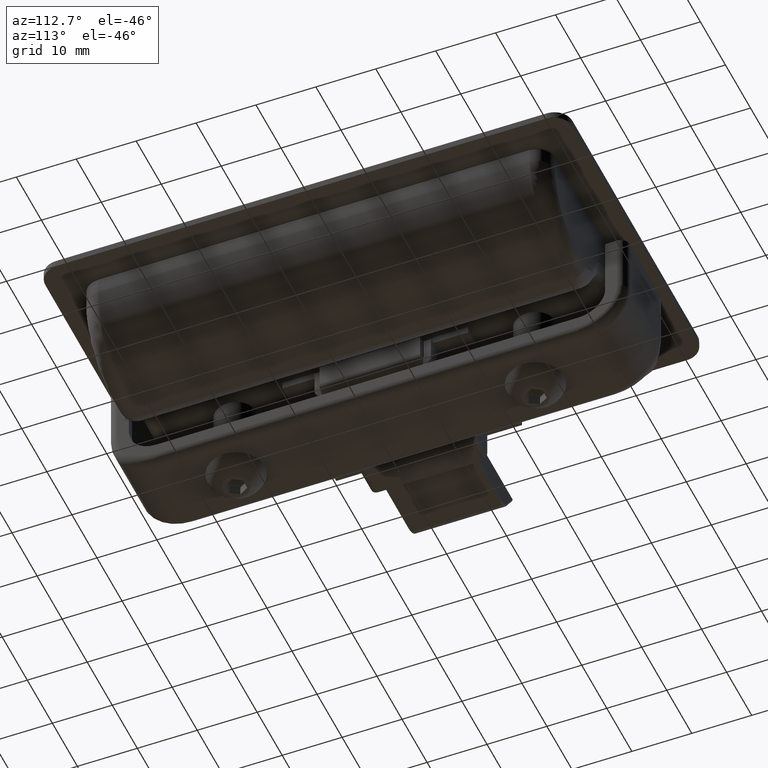
[diagram: clean part render]
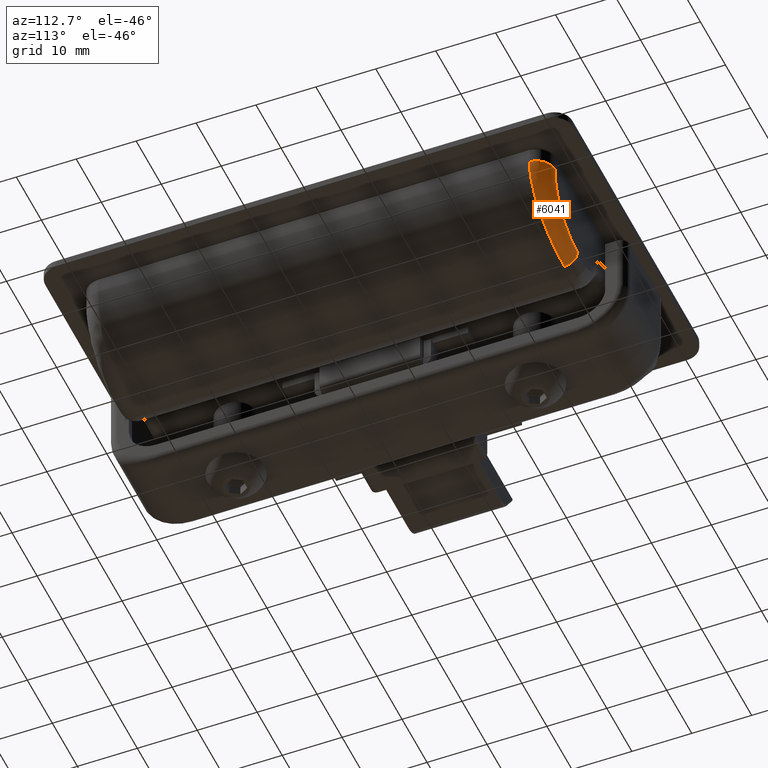
[diagram: same view with one face highlighted and labeled with its STEP entity id]
A machine part, auxiliary view. The second image highlights one B-rep face of the part: STEP entity #6041.
In plain terms, the highlighted face is a freeform B-spline surface patch.
Its self-contained STEP definition (entity closure, byte-faithful):
#155=(
BOUNDED_SURFACE()
B_SPLINE_SURFACE(2,3,((#9916,#9917,#9918,#9919,#9920,#9921,#9922,#9923,
#9924,#9925),(#9926,#9927,#9928,#9929,#9930,#9931,#9932,#9933,#9934,#9935),
(#9936,#9937,#9938,#9939,#9940,#9941,#9942,#9943,#9944,#9945)),
 .UNSPECIFIED.,.F.,.F.,.F.)
B_SPLINE_SURFACE_WITH_KNOTS((3,3),(4,2,2,2,4),(0.,1.),(3.14159265358979,
3.53429173528852,3.92699081698724,4.31968989868597,4.71238898038469),
 .UNSPECIFIED.)
GEOMETRIC_REPRESENTATION_ITEM()
RATIONAL_B_SPLINE_SURFACE(((1.,1.,1.,1.,1.,1.,1.,1.,1.,1.),(0.707106781186549,
0.707106781186549,0.707106781186546,0.707106781186546,0.707106781186547,
0.707106781186547,0.707106781186547,0.707106781186547,0.707106781186548,
0.707106781186548),(1.,1.,1.,1.,1.,1.,1.,1.,1.,1.)))
REPRESENTATION_ITEM('')
SURFACE()
);
#182=B_SPLINE_CURVE_WITH_KNOTS('',3,(#9555,#9556,#9557,#9558,#9559,#9560,
#9561,#9562,#9563,#9564,#9565,#9566,#9567,#9568,#9569,#9570,#9571,#9572,
#9573,#9574,#9575,#9576,#9577,#9578,#9579,#9580,#9581,#9582,#9583,#9584,
#9585,#9586,#9587,#9588,#9589,#9590,#9591,#9592,#9593,#9594,#9595,#9596,
#9597,#9598,#9599,#9600,#9601,#9602,#9603,#9604,#9605,#9606,#9607,#9608,
#9609,#9610,#9611,#9612,#9613,#9614,#9615,#9616,#9617,#9618,#9619,#9620,
#9621,#9622,#9623,#9624,#9625,#9626,#9627,#9628,#9629,#9630,#9631,#9632,
#9633,#9634,#9635,#9636,#9637,#9638,#9639,#9640,#9641,#9642,#9643,#9644,
#9645,#9646,#9647,#9648,#9649,#9650,#9651,#9652,#9653,#9654,#9655,#9656,
#9657,#9658,#9659,#9660,#9661,#9662,#9663,#9664,#9665),.UNSPECIFIED.,.F.,
 .F.,(4,2,2,2,2,2,2,2,2,2,2,2,2,2,2,2,2,2,2,2,2,2,2,2,2,2,2,2,2,2,2,2,2,
2,2,2,2,2,2,2,2,2,2,2,2,1,2,2,2,2,2,2,2,2,2,4),(0.,0.0349272003718459,0.0693509354147323,
0.10305007667034,0.124999999999937,0.157637924842805,0.188950866506552,
0.219396113454078,0.249023437499873,0.249999999999873,0.278650787749,0.306554265246798,
0.312499999999831,0.339583455436507,0.366142444632671,0.374511718749789,
0.374999999999788,0.393497829785575,0.411858566751557,0.429957199504132,
0.437499999999816,0.455150274135211,0.47254659811531,0.489531754489204,
0.499999999999844,0.517006015964808,0.534279166268868,0.551943137467371,
0.562499999999871,0.580640306168386,0.593749999999885,0.609374999999892,
0.617187499999896,0.621093749999898,0.623046874999899,0.624511718749899,
0.624999999999899,0.651347086444775,0.678357887353251,0.687499999999911,
0.715371956366571,0.718749999999917,0.73437499999992,0.742187499999921,
0.746093749999922,0.748046874999922,0.749023437499923,0.749999999999923,
0.781710604134765,0.813777152811446,0.846461530174434,0.874999999999962,
0.908771764808568,0.94299821133514,0.977978916761401,1.),.UNSPECIFIED.);
#184=B_SPLINE_CURVE_WITH_KNOTS('',3,(#9772,#9773,#9774,#9775,#9776,#9777,
#9778,#9779,#9780,#9781,#9782,#9783,#9784,#9785,#9786,#9787,#9788,#9789,
#9790,#9791,#9792,#9793,#9794,#9795,#9796,#9797,#9798,#9799,#9800,#9801,
#9802,#9803,#9804,#9805,#9806,#9807,#9808,#9809,#9810,#9811,#9812,#9813,
#9814,#9815,#9816,#9817,#9818,#9819,#9820,#9821,#9822,#9823,#9824,#9825,
#9826,#9827,#9828,#9829,#9830,#9831,#9832,#9833,#9834,#9835,#9836,#9837,
#9838,#9839,#9840,#9841,#9842,#9843,#9844,#9845,#9846,#9847,#9848,#9849,
#9850,#9851,#9852,#9853,#9854,#9855),.UNSPECIFIED.,.F.,.F.,(4,2,2,2,2,2,
2,2,2,2,2,2,2,2,2,2,2,2,2,2,2,2,2,2,2,2,2,2,2,2,2,2,2,2,2,2,2,2,2,2,2,4),
(0.,0.0415011715007992,0.083354052311527,0.125324954822428,0.167155952587942,
0.208503375388252,0.2421875,0.247973897324666,0.25,0.285596661352586,0.322485830676294,
0.359375000000002,0.3679171615979,0.375000000000002,0.411206998897462,0.447790999448733,
0.484375000000004,0.492925467121739,0.500000000000004,0.53195845878087,
0.564081332504275,0.596184828106291,0.609375000000006,0.618064039318579,
0.625000000000006,0.657431831188989,0.689955101509798,0.722363916744579,
0.734375000000004,0.743203537696466,0.750000000000004,0.779955350013755,
0.810040046488851,0.840062490126535,0.859375000000002,0.868510592164959,
0.875000000000001,0.906250000000001,0.93655870493973,0.968279352469865,
0.998285074018938,1.),.UNSPECIFIED.);
#1560=FACE_OUTER_BOUND('',#1978,.T.);
#1978=EDGE_LOOP('',(#4304,#4305,#4306,#4307));
#2406=CIRCLE('',#6490,3.);
#2407=CIRCLE('',#6491,2.2);
#2778=VERTEX_POINT('',#9435);
#2780=VERTEX_POINT('',#9441);
#2795=VERTEX_POINT('',#9769);
#2796=VERTEX_POINT('',#9771);
#3326=EDGE_CURVE('',#2778,#2780,#182,.T.);
#3342=EDGE_CURVE('',#2795,#2796,#184,.T.);
#3353=EDGE_CURVE('',#2795,#2780,#2406,.T.);
#3354=EDGE_CURVE('',#2796,#2778,#2407,.T.);
#4304=ORIENTED_EDGE('',*,*,#3353,.T.);
#4305=ORIENTED_EDGE('',*,*,#3326,.F.);
#4306=ORIENTED_EDGE('',*,*,#3354,.F.);
#4307=ORIENTED_EDGE('',*,*,#3342,.F.);
#6041=ADVANCED_FACE('',(#1560),#155,.T.);
#6490=AXIS2_PLACEMENT_3D('',#9915,#7378,#7379);
#6491=AXIS2_PLACEMENT_3D('',#9946,#7380,#7381);
#7378=DIRECTION('center_axis',(3.74178936112393E-15,-8.65570108052365E-15,
-1.));
#7379=DIRECTION('ref_axis',(-1.,-3.55281436604938E-31,-3.74178936112393E-15));
#7380=DIRECTION('center_axis',(1.,-1.42735678062161E-15,-3.4459440981219E-15));
#7381=DIRECTION('ref_axis',(-3.4459440981219E-15,5.96725231731081E-31,-1.));
#9435=CARTESIAN_POINT('',(-11.,-36.8,-16.));
#9441=CARTESIAN_POINT('',(-23.,-36.,-4.));
#9555=CARTESIAN_POINT('Ctrl Pts',(-11.,-36.8,-16.));
#9556=CARTESIAN_POINT('Ctrl Pts',(-11.1950682282601,-36.8,-16.));
#9557=CARTESIAN_POINT('Ctrl Pts',(-11.3935418430265,-36.7992285488874,-15.9951856902282));
#9558=CARTESIAN_POINT('Ctrl Pts',(-11.793883099729,-36.7961065833427,-15.9751439871374));
#9559=CARTESIAN_POINT('Ctrl Pts',(-11.9956607235131,-36.793778952997,-15.9600676229471));
#9560=CARTESIAN_POINT('Ctrl Pts',(-12.4004443089422,-36.7875928738174,-15.919190347629));
#9561=CARTESIAN_POINT('Ctrl Pts',(-12.6033350858954,-36.7837676542569,-15.8936217886271));
#9562=CARTESIAN_POINT('Ctrl Pts',(-12.9422228514774,-36.7761691867348,-15.8418613184463));
#9563=CARTESIAN_POINT('Ctrl Pts',(-13.0768785843357,-36.7728429642836,-15.8189946803037));
#9564=CARTESIAN_POINT('Ctrl Pts',(-13.4139594038582,-36.7637496746533,-15.75573594554));
#9565=CARTESIAN_POINT('Ctrl Pts',(-13.6174635224061,-36.7575822203427,-15.7122312099035));
#9566=CARTESIAN_POINT('Ctrl Pts',(-14.0193371078909,-36.7440720052843,-15.6150755035813));
#9567=CARTESIAN_POINT('Ctrl Pts',(-14.2175795494929,-36.7367871320364,-15.5619080638005));
#9568=CARTESIAN_POINT('Ctrl Pts',(-14.6107381157944,-36.7211184576635,-15.4453118974733));
#9569=CARTESIAN_POINT('Ctrl Pts',(-14.8055937480035,-36.7127707054985,-15.3822083128582));
#9570=CARTESIAN_POINT('Ctrl Pts',(-15.1913538553518,-36.695102589883,-15.2459572764785));
#9571=CARTESIAN_POINT('Ctrl Pts',(-15.3822239254487,-36.6858143618025,-15.173124963855));
#9572=CARTESIAN_POINT('Ctrl Pts',(-15.5796038389598,-36.6756504498243,-15.0917660168176));
#9573=CARTESIAN_POINT('Ctrl Pts',(-15.5871640402819,-36.6752603219317,-15.0886408451938));
#9574=CARTESIAN_POINT('Ctrl Pts',(-15.7399830876971,-36.6673626349119,-15.0253411231655));
#9575=CARTESIAN_POINT('Ctrl Pts',(-15.8907769087697,-36.6592455704429,-14.9593766506393));
#9576=CARTESIAN_POINT('Ctrl Pts',(-16.1936851566806,-36.6422474382616,-14.8189104319632));
#9577=CARTESIAN_POINT('Ctrl Pts',(-16.34566265715,-36.6333917694416,-14.7446760131028));
#9578=CARTESIAN_POINT('Ctrl Pts',(-16.532634298075,-36.6220726918103,-14.64814356084));
#9579=CARTESIAN_POINT('Ctrl Pts',(-16.5655740527362,-36.6200629091007,-14.6309447579687));
#9580=CARTESIAN_POINT('Ctrl Pts',(-16.7490778923754,-36.6087785864454,-14.5340341678871));
#9581=CARTESIAN_POINT('Ctrl Pts',(-16.9014951879343,-36.5990775620655,-14.4494534086259));
#9582=CARTESIAN_POINT('Ctrl Pts',(-17.2064482310706,-36.5789825511944,-14.2710529813834));
#9583=CARTESIAN_POINT('Ctrl Pts',(-17.3589244568234,-36.568605592029,-14.1774439188532));
#9584=CARTESIAN_POINT('Ctrl Pts',(-17.56085408859,-36.55441089958,-14.0469301336));
#9585=CARTESIAN_POINT('Ctrl Pts',(-17.6093447783047,-36.5509683716216,-14.0150981170887));
#9586=CARTESIAN_POINT('Ctrl Pts',(-17.6607612741085,-36.5472818609106,-13.9808056429715));
#9587=CARTESIAN_POINT('Ctrl Pts',(-17.664731810029,-36.5469969677717,-13.9781543522666));
#9588=CARTESIAN_POINT('Ctrl Pts',(-17.7308012583916,-36.5422544448346,-13.9340081582516));
#9589=CARTESIAN_POINT('Ctrl Pts',(-17.7995353007429,-36.5372607417149,-13.8871911898194));
#9590=CARTESIAN_POINT('Ctrl Pts',(-17.9447603186336,-36.5265467612631,-13.7857539777134));
#9591=CARTESIAN_POINT('Ctrl Pts',(-18.0211902749424,-36.5208320714969,-13.7311939036659));
#9592=CARTESIAN_POINT('Ctrl Pts',(-18.1805760564729,-36.5087182076519,-13.6142383340143));
#9593=CARTESIAN_POINT('Ctrl Pts',(-18.2634233575298,-36.5023298976501,-13.5519655388336));
#9594=CARTESIAN_POINT('Ctrl Pts',(-18.3856757469835,-36.4927407644657,-13.4573135128695));
#9595=CARTESIAN_POINT('Ctrl Pts',(-18.4222354950882,-36.4898540112034,-13.4286821082124));
#9596=CARTESIAN_POINT('Ctrl Pts',(-18.5462641910797,-36.4799912579866,-13.3303389792545));
#9597=CARTESIAN_POINT('Ctrl Pts',(-18.6363102642858,-36.4727186206532,-13.2569895112932));
#9598=CARTESIAN_POINT('Ctrl Pts',(-18.8207072398,-36.4575594238667,-13.1018683078306));
#9599=CARTESIAN_POINT('Ctrl Pts',(-18.9149777695946,-36.4496831340433,-13.0202326788689));
#9600=CARTESIAN_POINT('Ctrl Pts',(-19.1059856801658,-36.4334333685822,-12.8490871112457));
#9601=CARTESIAN_POINT('Ctrl Pts',(-19.2026122136688,-36.425075987997,-12.7598086327028));
#9602=CARTESIAN_POINT('Ctrl Pts',(-19.3618258593029,-36.4110529747348,-12.6073598519145));
#9603=CARTESIAN_POINT('Ctrl Pts',(-19.4232477351161,-36.4055849898958,-12.547315013361));
#9604=CARTESIAN_POINT('Ctrl Pts',(-19.586057101767,-36.3909269969509,-12.3845056467101));
#9605=CARTESIAN_POINT('Ctrl Pts',(-19.6815824230709,-36.3821759191713,-12.2853492689151));
#9606=CARTESIAN_POINT('Ctrl Pts',(-19.8641912230517,-36.3652019124931,-12.0895883542031));
#9607=CARTESIAN_POINT('Ctrl Pts',(-19.9511187761307,-36.3569893688024,-11.993048167714));
#9608=CARTESIAN_POINT('Ctrl Pts',(-20.117305421638,-36.3410706724685,-11.8028176967885));
#9609=CARTESIAN_POINT('Ctrl Pts',(-20.1963467906027,-36.3333801133109,-11.709241163461));
#9610=CARTESIAN_POINT('Ctrl Pts',(-20.3152024267331,-36.3216577654358,-11.5644717080854));
#9611=CARTESIAN_POINT('Ctrl Pts',(-20.3580037821887,-36.3173987477611,-11.5113734471773));
#9612=CARTESIAN_POINT('Ctrl Pts',(-20.4700258824126,-36.3061590197091,-11.3700940225767));
#9613=CARTESIAN_POINT('Ctrl Pts',(-20.5361409701543,-36.2994269695136,-11.284112119828));
#9614=CARTESIAN_POINT('Ctrl Pts',(-20.6425170515371,-36.2884741971234,-11.142247208073));
#9615=CARTESIAN_POINT('Ctrl Pts',(-20.6848628380056,-36.2840746758311,-11.0846286097772));
#9616=CARTESIAN_POINT('Ctrl Pts',(-20.7729394489097,-36.2748582791688,-10.9627106353361));
#9617=CARTESIAN_POINT('Ctrl Pts',(-20.8177613238162,-36.2701237525121,-10.8992509940001));
#9618=CARTESIAN_POINT('Ctrl Pts',(-20.8806656235754,-36.2634375388261,-10.8085381752489));
#9619=CARTESIAN_POINT('Ctrl Pts',(-20.9009120665458,-36.2612780636413,-10.7790463285802));
#9620=CARTESIAN_POINT('Ctrl Pts',(-20.9302318371637,-36.2581427445756,-10.7359521264737));
#9621=CARTESIAN_POINT('Ctrl Pts',(-20.9398300913826,-36.2571149538391,-10.7217779734544));
#9622=CARTESIAN_POINT('Ctrl Pts',(-20.9539689052028,-36.2555992411199,-10.7008055416627));
#9623=CARTESIAN_POINT('Ctrl Pts',(-20.9586387472891,-36.2550983324445,-10.6938628631625));
#9624=CARTESIAN_POINT('Ctrl Pts',(-20.9667361150193,-36.2542293178273,-10.6817978231239));
#9625=CARTESIAN_POINT('Ctrl Pts',(-20.9701823544645,-36.2538593179943,-10.6766542996327));
#9626=CARTESIAN_POINT('Ctrl Pts',(-20.9747454378374,-36.2533692315525,-10.6698326772149));
#9627=CARTESIAN_POINT('Ctrl Pts',(-20.9751248867903,-36.2533284824805,-10.6692657255183));
#9628=CARTESIAN_POINT('Ctrl Pts',(-21.0792236172455,-36.2421453558169,-10.5134709656329));
#9629=CARTESIAN_POINT('Ctrl Pts',(-21.175774982713,-36.2315792715903,-10.3614093121086));
#9630=CARTESIAN_POINT('Ctrl Pts',(-21.360548521992,-36.2110303951224,-10.056145371136));
#9631=CARTESIAN_POINT('Ctrl Pts',(-21.4484997774183,-36.2010689597228,-9.90301076496438));
#9632=CARTESIAN_POINT('Ctrl Pts',(-21.5592419343351,-36.1883219592296,-9.70046262707245));
#9633=CARTESIAN_POINT('Ctrl Pts',(-21.586648562157,-36.1851486607667,-9.64944997164707));
#9634=CARTESIAN_POINT('Ctrl Pts',(-21.6952521266779,-36.1725021894292,-9.44380743087607));
#9635=CARTESIAN_POINT('Ctrl Pts',(-21.7716159251818,-36.1634456256431,-9.29101492837013));
#9636=CARTESIAN_POINT('Ctrl Pts',(-21.851623453185,-36.1538148052127,-9.12243937158135));
#9637=CARTESIAN_POINT('Ctrl Pts',(-21.8601985427494,-36.1527805864326,-9.1042525652958));
#9638=CARTESIAN_POINT('Ctrl Pts',(-21.9080279092721,-36.1470011167273,-9.00214821425457));
#9639=CARTESIAN_POINT('Ctrl Pts',(-21.9457977522556,-36.1423956364908,-8.91897348417631));
#9640=CARTESIAN_POINT('Ctrl Pts',(-22.0002250959428,-36.135707334173,-8.79546951166662));
#9641=CARTESIAN_POINT('Ctrl Pts',(-22.0179962768787,-36.1335145530782,-8.75451119940016));
#9642=CARTESIAN_POINT('Ctrl Pts',(-22.0441097114093,-36.1302803609962,-8.69339867812763));
#9643=CARTESIAN_POINT('Ctrl Pts',(-22.0527236315009,-36.1292114602289,-8.67308199493714));
#9644=CARTESIAN_POINT('Ctrl Pts',(-22.0655103596108,-36.127621853972,-8.64268948849844));
#9645=CARTESIAN_POINT('Ctrl Pts',(-22.0718701854841,-36.1268304870671,-8.62751386481443));
#9646=CARTESIAN_POINT('Ctrl Pts',(-22.0781800198116,-36.1260442744978,-8.61236942221531));
#9647=CARTESIAN_POINT('Ctrl Pts',(-22.0823755018458,-36.125521278193,-8.60228008237203));
#9648=CARTESIAN_POINT('Ctrl Pts',(-22.0839453942735,-36.125325520833,-8.59849986157525));
#9649=CARTESIAN_POINT('Ctrl Pts',(-22.1712728131431,-36.1144298900986,-8.38767282257306));
#9650=CARTESIAN_POINT('Ctrl Pts',(-22.2491833397509,-36.1045189314184,-8.18337939080053));
#9651=CARTESIAN_POINT('Ctrl Pts',(-22.3929266475737,-36.0859392169861,-7.77394645350349));
#9652=CARTESIAN_POINT('Ctrl Pts',(-22.4586140886361,-36.0772856146089,-7.56882308377903));
#9653=CARTESIAN_POINT('Ctrl Pts',(-22.57872331661,-36.0612094481412,-7.15701406553437));
#9654=CARTESIAN_POINT('Ctrl Pts',(-22.6329037159812,-36.0538137836836,-6.9503744135248));
#9655=CARTESIAN_POINT('Ctrl Pts',(-22.7230647204424,-36.0412970656613,-6.56639728974852));
#9656=CARTESIAN_POINT('Ctrl Pts',(-22.7604821357451,-36.0360063040006,-6.38866687405895));
#9657=CARTESIAN_POINT('Ctrl Pts',(-22.832690607844,-36.0256212704546,-6.00390033054874));
#9658=CARTESIAN_POINT('Ctrl Pts',(-22.8657439569316,-36.0207447420836,-5.79745715288863));
#9659=CARTESIAN_POINT('Ctrl Pts',(-22.9209210941769,-36.0124618016179,-5.38673926574687));
#9660=CARTESIAN_POINT('Ctrl Pts',(-22.9428918081852,-36.0090760477346,-5.18253103163697));
#9661=CARTESIAN_POINT('Ctrl Pts',(-22.9764888564074,-36.0038192612267,-4.77536627561077));
#9662=CARTESIAN_POINT('Ctrl Pts',(-22.9878766398763,-36.0019832440615,-4.57253642752405));
#9663=CARTESIAN_POINT('Ctrl Pts',(-22.9980860349605,-36.0003197614924,-4.24733292636259));
#9664=CARTESIAN_POINT('Ctrl Pts',(-23.,-36.0000000000572,-4.12299023041102));
#9665=CARTESIAN_POINT('Ctrl Pts',(-23.,-36.,-4.));
#9769=CARTESIAN_POINT('',(-20.,-39.,-3.99999999999997));
#9771=CARTESIAN_POINT('',(-11.,-39.,-13.8));
#9772=CARTESIAN_POINT('Ctrl Pts',(-20.,-39.,-3.99999999999999));
#9773=CARTESIAN_POINT('Ctrl Pts',(-20.0000000001292,-39.,-4.2023852085093));
#9774=CARTESIAN_POINT('Ctrl Pts',(-19.9946339813092,-39.000000000011,-4.40328258126187));
#9775=CARTESIAN_POINT('Ctrl Pts',(-19.9733125226411,-38.9999999998768,-4.80372311309277));
#9776=CARTESIAN_POINT('Ctrl Pts',(-19.9572678708191,-38.9999999997116,-5.00324086450266));
#9777=CARTESIAN_POINT('Ctrl Pts',(-19.9145828816791,-38.9999999991447,-5.39971447928404));
#9778=CARTESIAN_POINT('Ctrl Pts',(-19.8879129067856,-38.9999999987434,-5.59666202588474));
#9779=CARTESIAN_POINT('Ctrl Pts',(-19.8241279384552,-38.9999999980737,-5.98677298627235));
#9780=CARTESIAN_POINT('Ctrl Pts',(-19.787048134066,-38.9999999978255,-6.17994729718094));
#9781=CARTESIAN_POINT('Ctrl Pts',(-19.7028378803905,-38.9999999979378,-6.56098827003414));
#9782=CARTESIAN_POINT('Ctrl Pts',(-19.6558285913513,-38.9999999983269,-6.74889090169454));
#9783=CARTESIAN_POINT('Ctrl Pts',(-19.5610356649497,-38.9999999993251,-7.08714730563004));
#9784=CARTESIAN_POINT('Ctrl Pts',(-19.515009441843,-38.9999999998861,-7.23800588539269));
#9785=CARTESIAN_POINT('Ctrl Pts',(-19.456929959242,-39.0000000000033,-7.41361571233054));
#9786=CARTESIAN_POINT('Ctrl Pts',(-19.4485458476793,-38.9999999999998,-7.43864514924581));
#9787=CARTESIAN_POINT('Ctrl Pts',(-19.4367082405602,-38.9999999999998,-7.47353044332629));
#9788=CARTESIAN_POINT('Ctrl Pts',(-19.4335907968593,-38.9999999999998,-7.48267667332874));
#9789=CARTESIAN_POINT('Ctrl Pts',(-19.3743843900403,-38.9999999999946,-7.65556021290209));
#9790=CARTESIAN_POINT('Ctrl Pts',(-19.3143476709555,-38.9999999999317,-7.81712956146687));
#9791=CARTESIAN_POINT('Ctrl Pts',(-19.1840190638193,-38.9999999996735,-8.14206417985427));
#9792=CARTESIAN_POINT('Ctrl Pts',(-19.1134341701223,-38.9999999994952,-8.30528224480231));
#9793=CARTESIAN_POINT('Ctrl Pts',(-18.963748295412,-38.9999999995184,-8.62742967957971));
#9794=CARTESIAN_POINT('Ctrl Pts',(-18.8846472060888,-38.99999999982,-8.78635964304562));
#9795=CARTESIAN_POINT('Ctrl Pts',(-18.7819147065572,-38.9999999999944,-8.97943863680398));
#9796=CARTESIAN_POINT('Ctrl Pts',(-18.7626660750062,-38.9999999999967,-9.01508020182283));
#9797=CARTESIAN_POINT('Ctrl Pts',(-18.7266990298717,-38.9999999999998,-9.08070802595414));
#9798=CARTESIAN_POINT('Ctrl Pts',(-18.7101093569686,-38.9999999999998,-9.11061990951684));
#9799=CARTESIAN_POINT('Ctrl Pts',(-18.6051378690798,-38.9999999999873,-9.29749630899434));
#9800=CARTESIAN_POINT('Ctrl Pts',(-18.5134809400306,-38.9999999999153,-9.4506232114248));
#9801=CARTESIAN_POINT('Ctrl Pts',(-18.3215548439896,-38.9999999996861,-9.75211185497144));
#9802=CARTESIAN_POINT('Ctrl Pts',(-18.2212058927328,-38.99999999955,-9.90040791353435));
#9803=CARTESIAN_POINT('Ctrl Pts',(-18.0127297486173,-38.9999999996009,-10.1905451287229));
#9804=CARTESIAN_POINT('Ctrl Pts',(-17.9046024444216,-38.9999999998622,-10.3323867948944));
#9805=CARTESIAN_POINT('Ctrl Pts',(-17.7663415135068,-38.999999999998,-10.503379589163));
#9806=CARTESIAN_POINT('Ctrl Pts',(-17.7403059601001,-38.999999999998,-10.5351468924648));
#9807=CARTESIAN_POINT('Ctrl Pts',(-17.6919125556723,-38.9999999999997,-10.5934084284948));
#9808=CARTESIAN_POINT('Ctrl Pts',(-17.6696949067594,-38.9999999999997,-10.6198658991222));
#9809=CARTESIAN_POINT('Ctrl Pts',(-17.5434101676373,-38.9999999999858,-10.7685074728684));
#9810=CARTESIAN_POINT('Ctrl Pts',(-17.4371282708964,-38.9999999998967,-10.8871963338189));
#9811=CARTESIAN_POINT('Ctrl Pts',(-17.218337811864,-38.9999999993321,-11.1192101030522));
#9812=CARTESIAN_POINT('Ctrl Pts',(-17.1057997096467,-38.9999999988612,-11.2325046996703));
#9813=CARTESIAN_POINT('Ctrl Pts',(-16.8750837993456,-38.9999999984565,-11.4530227614304));
#9814=CARTESIAN_POINT('Ctrl Pts',(-16.7569091015403,-38.9999999986587,-11.5602502572279));
#9815=CARTESIAN_POINT('Ctrl Pts',(-16.5861101108682,-38.9999999994303,-11.7072697389166));
#9816=CARTESIAN_POINT('Ctrl Pts',(-16.5358834777718,-38.9999999996948,-11.7495733588406));
#9817=CARTESIAN_POINT('Ctrl Pts',(-16.4517544841197,-38.9999999999699,-11.8188918685952));
#9818=CARTESIAN_POINT('Ctrl Pts',(-16.418555205611,-38.999999999986,-11.8458593767202));
#9819=CARTESIAN_POINT('Ctrl Pts',(-16.3579755178593,-39.,-11.8943727626217));
#9820=CARTESIAN_POINT('Ctrl Pts',(-16.3307718549295,-38.9999999999996,-11.9159141010501));
#9821=CARTESIAN_POINT('Ctrl Pts',(-16.1724821960202,-38.9999999999831,-12.0397664879381));
#9822=CARTESIAN_POINT('Ctrl Pts',(-16.0399679773399,-38.9999999998827,-12.1377538977203));
#9823=CARTESIAN_POINT('Ctrl Pts',(-15.7704304999499,-38.9999999993498,-12.3259817968838));
#9824=CARTESIAN_POINT('Ctrl Pts',(-15.6333952279579,-38.9999999989299,-12.4162000671678));
#9825=CARTESIAN_POINT('Ctrl Pts',(-15.3556721731023,-38.9999999986289,-12.5882924306515));
#9826=CARTESIAN_POINT('Ctrl Pts',(-15.2149985817784,-38.9999999988706,-12.6701951352235));
#9827=CARTESIAN_POINT('Ctrl Pts',(-15.019328207293,-38.9999999995538,-12.7769415363743));
#9828=CARTESIAN_POINT('Ctrl Pts',(-14.9661320934689,-38.9999999997579,-12.8052530261257));
#9829=CARTESIAN_POINT('Ctrl Pts',(-14.8733322727036,-38.9999999999807,-12.8534106051453));
#9830=CARTESIAN_POINT('Ctrl Pts',(-14.8343068327232,-38.99999999999,-12.8732913113155));
#9831=CARTESIAN_POINT('Ctrl Pts',(-14.7644259266685,-38.9999999999996,-12.9082326276697));
#9832=CARTESIAN_POINT('Ctrl Pts',(-14.7337569591994,-38.9999999999995,-12.923348600636));
#9833=CARTESIAN_POINT('Ctrl Pts',(-14.5645397435357,-38.9999999999809,-13.0054875502888));
#9834=CARTESIAN_POINT('Ctrl Pts',(-14.4252345233437,-38.9999999998671,-13.0685678148339));
#9835=CARTESIAN_POINT('Ctrl Pts',(-14.1433195184376,-38.9999999989448,-13.1873665352934));
#9836=CARTESIAN_POINT('Ctrl Pts',(-14.0006975834652,-38.9999999981199,-13.2430522392715));
#9837=CARTESIAN_POINT('Ctrl Pts',(-13.713040351899,-38.9999999970821,-13.346664912415));
#9838=CARTESIAN_POINT('Ctrl Pts',(-13.5680101738715,-38.9999999970426,-13.3946078850019));
#9839=CARTESIAN_POINT('Ctrl Pts',(-13.3274421932539,-38.9999999983469,-13.467078676971));
#9840=CARTESIAN_POINT('Ctrl Pts',(-13.2327046370792,-38.9999999992044,-13.493857364482));
#9841=CARTESIAN_POINT('Ctrl Pts',(-13.0923088380126,-38.9999999999383,-13.5309319432742));
#9842=CARTESIAN_POINT('Ctrl Pts',(-13.047532615738,-38.9999999999732,-13.5423732061319));
#9843=CARTESIAN_POINT('Ctrl Pts',(-12.9701742824174,-38.9999999999999,-13.5614821613422));
#9844=CARTESIAN_POINT('Ctrl Pts',(-12.9378165213873,-38.9999999999992,-13.5692819645716));
#9845=CARTESIAN_POINT('Ctrl Pts',(-12.746692338196,-38.9999999999773,-13.6141662678586));
#9846=CARTESIAN_POINT('Ctrl Pts',(-12.5882849201322,-38.9999999999302,-13.6466179099664));
#9847=CARTESIAN_POINT('Ctrl Pts',(-12.2760169838681,-38.9999999999094,-13.7014178187656));
#9848=CARTESIAN_POINT('Ctrl Pts',(-12.1221625693405,-38.9999999999242,-13.7240408878793));
#9849=CARTESIAN_POINT('Ctrl Pts',(-11.8070790248004,-38.999999999963,-13.7614773083524));
#9850=CARTESIAN_POINT('Ctrl Pts',(-11.6458398079357,-38.9999999999836,-13.7758783802581));
#9851=CARTESIAN_POINT('Ctrl Pts',(-11.3318396330804,-39.0000000000005,-13.7946189395154));
#9852=CARTESIAN_POINT('Ctrl Pts',(-11.1790910230484,-39.,-13.7994600070993));
#9853=CARTESIAN_POINT('Ctrl Pts',(-11.017476166129,-39.,-13.7999857779387));
#9854=CARTESIAN_POINT('Ctrl Pts',(-11.0087382959259,-39.,-13.7999999999949));
#9855=CARTESIAN_POINT('Ctrl Pts',(-11.,-39.,-13.8));
#9915=CARTESIAN_POINT('Origin',(-20.,-36.,-3.99999999999999));
#9916=CARTESIAN_POINT('Ctrl Pts',(-11.,-36.8,-16.));
#9917=CARTESIAN_POINT('Ctrl Pts',(-12.5710795358346,-36.7999999992369,-16.));
#9918=CARTESIAN_POINT('Ctrl Pts',(-14.1409746139901,-36.7499999996286,-15.6876721193244));
#9919=CARTESIAN_POINT('Ctrl Pts',(-17.0434277627721,-36.6000000003714,-14.4854366609464));
#9920=CARTESIAN_POINT('Ctrl Pts',(-18.3745606409835,-36.499999999621,-13.5960021074936));
#9921=CARTESIAN_POINT('Ctrl Pts',(-20.5960021074937,-36.3000000003789,-11.3745606409835));
#9922=CARTESIAN_POINT('Ctrl Pts',(-21.4854366609473,-36.1999999996177,-10.04342776277));
#9923=CARTESIAN_POINT('Ctrl Pts',(-22.6876721193236,-36.0500000003823,-7.1409746139922));
#9924=CARTESIAN_POINT('Ctrl Pts',(-23.,-36.0000000007304,-5.57107953583304));
#9925=CARTESIAN_POINT('Ctrl Pts',(-23.,-36.,-3.99999999999998));
#9926=CARTESIAN_POINT('Ctrl Pts',(-11.,-39.,-16.));
#9927=CARTESIAN_POINT('Ctrl Pts',(-12.5710795358351,-39.,-16.0000000000191));
#9928=CARTESIAN_POINT('Ctrl Pts',(-14.1409746139895,-39.,-15.6876721193208));
#9929=CARTESIAN_POINT('Ctrl Pts',(-17.0434277627727,-39.,-14.4854366609501));
#9930=CARTESIAN_POINT('Ctrl Pts',(-18.3745606409855,-39.,-13.5960021074971));
#9931=CARTESIAN_POINT('Ctrl Pts',(-20.5960021074916,-39.,-11.3745606409801));
#9932=CARTESIAN_POINT('Ctrl Pts',(-21.4854366609528,-38.9999999999946,-10.0434277627727));
#9933=CARTESIAN_POINT('Ctrl Pts',(-22.6876721193181,-39.0000000000054,-7.14097461398948));
#9934=CARTESIAN_POINT('Ctrl Pts',(-23.0000000000245,-39.,-5.5710795358351));
#9935=CARTESIAN_POINT('Ctrl Pts',(-23.,-39.,-3.99999999999998));
#9936=CARTESIAN_POINT('Ctrl Pts',(-11.,-39.,-13.8));
#9937=CARTESIAN_POINT('Ctrl Pts',(-12.2846038841584,-39.,-13.7999999992496));
#9938=CARTESIAN_POINT('Ctrl Pts',(-13.5611120401236,-39.,-13.4924766103885));
#9939=CARTESIAN_POINT('Ctrl Pts',(-15.8438123761409,-39.,-12.3845923437049));
#9940=CARTESIAN_POINT('Ctrl Pts',(-16.8474498463792,-39.,-11.5875789951437));
#9941=CARTESIAN_POINT('Ctrl Pts',(-18.4461576399278,-39.,-9.70602849116339));
#9942=CARTESIAN_POINT('Ctrl Pts',(-19.0425917584432,-39.,-8.62422445219909));
#9943=CARTESIAN_POINT('Ctrl Pts',(-19.8182097098878,-39.,-6.35974818846382));
#9944=CARTESIAN_POINT('Ctrl Pts',(-20.0000000007512,-39.,-5.1767540553126));
#9945=CARTESIAN_POINT('Ctrl Pts',(-20.,-39.,-3.99999999999999));
#9946=CARTESIAN_POINT('Origin',(-11.,-36.8,-13.8));